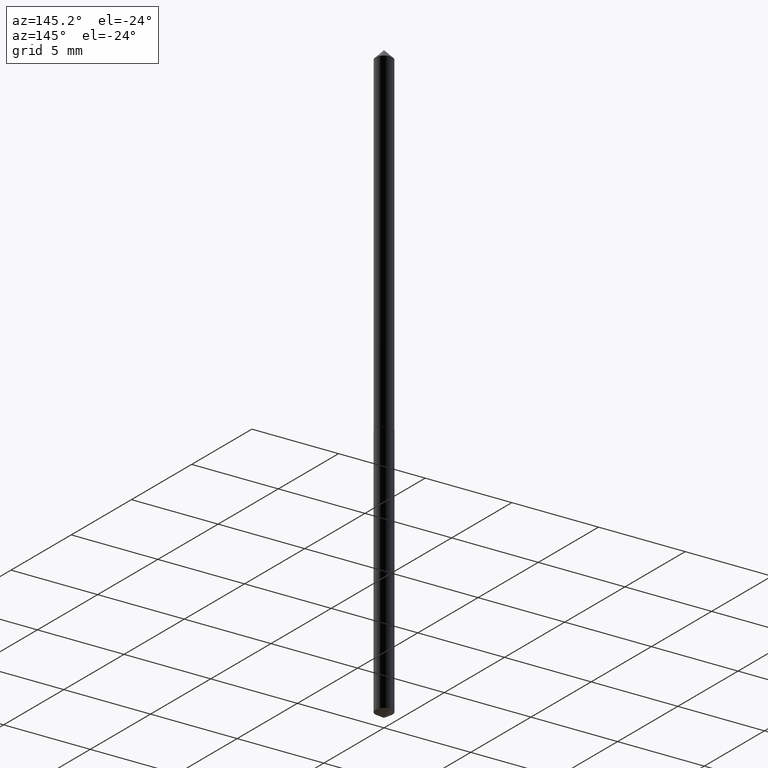
[diagram: clean part render]
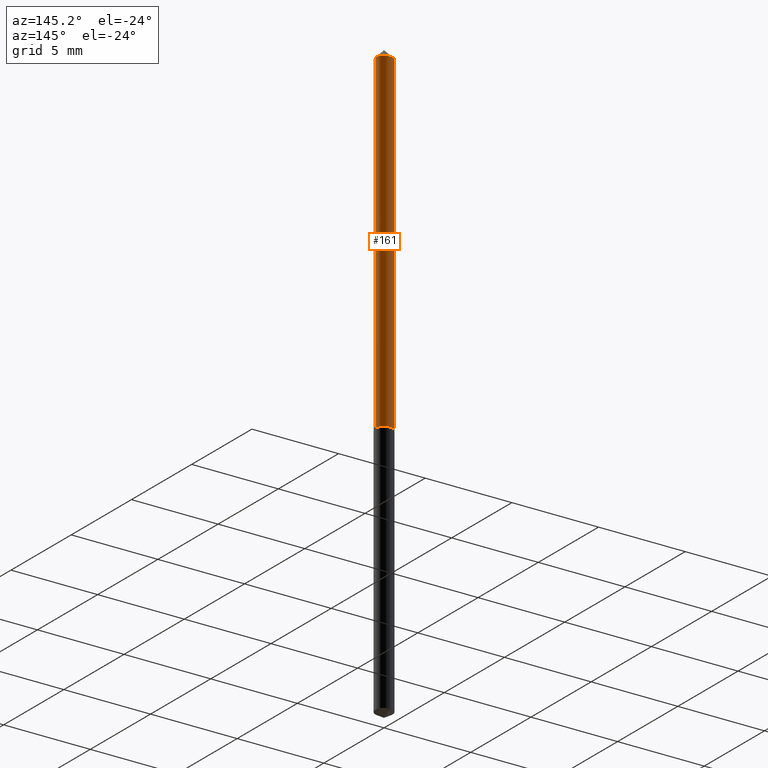
[diagram: same view with one face highlighted and labeled with its STEP entity id]
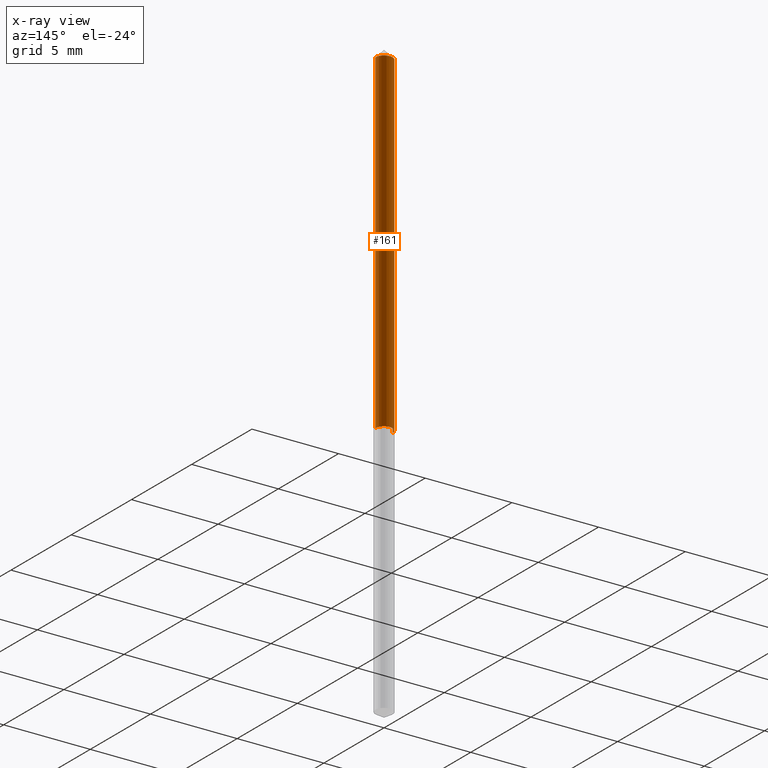
[diagram: x-ray of the same camera — body ghosted, the highlighted face saturated]
A machine part, auxiliary view. The second image highlights one B-rep face of the part: STEP entity #161.
The next image is the same camera in x-ray: the body ghosted, the highlighted face saturated — about 0% of this face is hidden behind the body in this view.
In plain terms, the highlighted cylindrical surface (edge-blend (fillet) strip) has radius 0.4953 mm, axis along (-0, 0, 1).
Its self-contained STEP definition (entity closure, byte-faithful):
#6 = AXIS2_PLACEMENT_3D ( 'NONE', #135, #72, #233 ) ;
#18 = DIRECTION ( 'NONE',  ( 1.000000000000000000, -6.982962677686271444E-15, 0.000000000000000000 ) ) ;
#21 = DIRECTION ( 'NONE',  ( -2.445468806185136597E-29, 3.491481338843145583E-15, 1.000000000000000000 ) ) ;
#43 = CARTESIAN_POINT ( 'NONE',  ( 0.01950000000000010059, -2.889200807892702791E-15, -0.7884999999999999787 ) ) ;
#46 = DIRECTION ( 'NONE',  ( -2.445468806185136877E-29, 3.491481338843145188E-15, 1.000000000000000000 ) ) ;
#48 = ORIENTED_EDGE ( 'NONE', *, *, #71, .F. ) ;
#49 = CARTESIAN_POINT ( 'NONE',  ( 7.642090019328603538E-31, -1.091087918388490390E-16, -0.03125000000000021511 ) ) ;
#71 = EDGE_CURVE ( 'NONE', #203, #257, #102, .T. ) ;
#72 = DIRECTION ( 'NONE',  ( -2.445468806185136597E-29, 3.491481338843145583E-15, 1.000000000000000000 ) ) ;
#75 = CARTESIAN_POINT ( 'NONE',  ( -0.01950000000000004854, 1.385558334732198812E-16, -9.591923425997091666E-31 ) ) ;
#100 = ORIENTED_EDGE ( 'NONE', *, *, #137, .T. ) ;
#102 = CIRCLE ( 'NONE', #151, 0.01950000000000000344 ) ;
#104 = DIRECTION ( 'NONE',  ( 1.000000000000000000, -6.982962677686265922E-15, 0.000000000000000000 ) ) ;
#115 = AXIS2_PLACEMENT_3D ( 'NONE', #355, #21, #18 ) ;
#130 = EDGE_CURVE ( 'NONE', #148, #203, #354, .T. ) ;
#132 = CYLINDRICAL_SURFACE ( 'NONE', #6, 0.01950000000000004854 ) ;
#135 = CARTESIAN_POINT ( 'NONE',  ( 0.000000000000000000, 0.000000000000000000, 0.000000000000000000 ) ) ;
#137 = EDGE_CURVE ( 'NONE', #315, #257, #270, .T. ) ;
#148 = VERTEX_POINT ( 'NONE', #43 ) ;
#151 = AXIS2_PLACEMENT_3D ( 'NONE', #49, #359, #104 ) ;
#153 = EDGE_CURVE ( 'NONE', #148, #315, #258, .T. ) ;
#161 = ADVANCED_FACE ( 'NONE', ( #209 ), #132, .T. ) ;
#178 = CARTESIAN_POINT ( 'NONE',  ( 0.01950000000000004854, -1.361677722148825539E-16, 9.508544712802099179E-31 ) ) ;
#186 = CARTESIAN_POINT ( 'NONE',  ( -0.01950000000000000344, -1.292515080285113506E-15, -0.03125000000000021511 ) ) ;
#203 = VERTEX_POINT ( 'NONE', #332 ) ;
#209 = FACE_OUTER_BOUND ( 'NONE', #259, .T. ) ;
#233 = DIRECTION ( 'NONE',  ( 1.000000000000000000, -6.982962677686267499E-15, 4.876176775795936353E-29 ) ) ;
#257 = VERTEX_POINT ( 'NONE', #186 ) ;
#258 = CIRCLE ( 'NONE', #115, 0.01950000000000010059 ) ;
#259 = EDGE_LOOP ( 'NONE', ( #290, #100, #48, #312 ) ) ;
#270 = LINE ( 'NONE', #75, #295 ) ;
#273 = CARTESIAN_POINT ( 'NONE',  ( -0.01950000000000010059, -2.614477202204599937E-15, -0.7884999999999999787 ) ) ;
#290 = ORIENTED_EDGE ( 'NONE', *, *, #153, .T. ) ;
#291 = DIRECTION ( 'NONE',  ( -2.445468806185136877E-29, 3.491481338843145188E-15, 1.000000000000000000 ) ) ;
#295 = VECTOR ( 'NONE', #291, 39.37007874015748143 ) ;
#302 = VECTOR ( 'NONE', #46, 39.37007874015748143 ) ;
#312 = ORIENTED_EDGE ( 'NONE', *, *, #130, .F. ) ;
#315 = VERTEX_POINT ( 'NONE', #273 ) ;
#332 = CARTESIAN_POINT ( 'NONE',  ( 0.01950000000000000344, -2.452765640537312601E-16, -0.03125000000000021511 ) ) ;
#354 = LINE ( 'NONE', #178, #302 ) ;
#355 = CARTESIAN_POINT ( 'NONE',  ( 1.928252153676979944E-29, -2.753033035677819991E-15, -0.7884999999999999787 ) ) ;
#359 = DIRECTION ( 'NONE',  ( -2.445468806185136597E-29, 3.491481338843145583E-15, 1.000000000000000000 ) ) ;